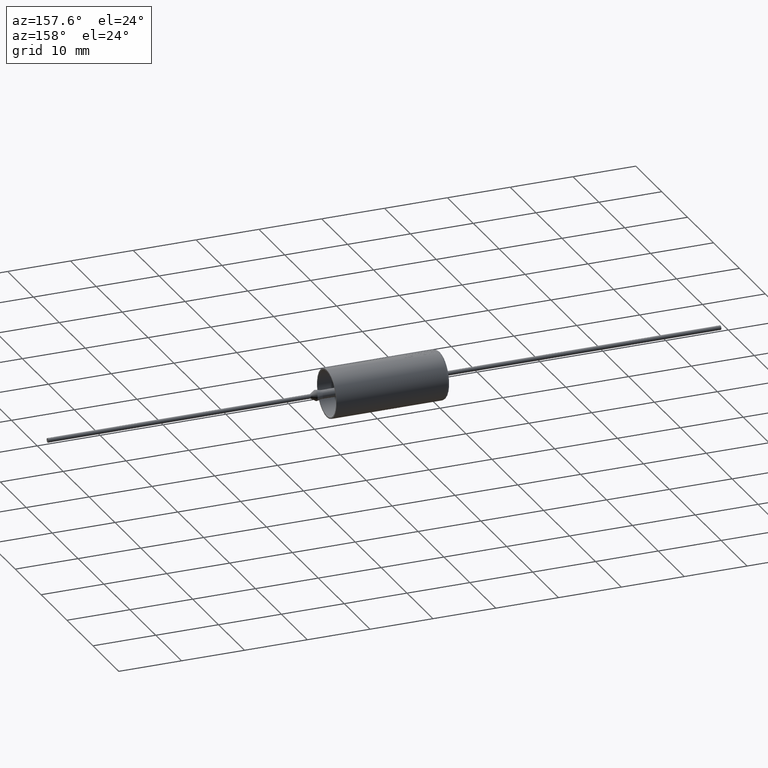
[diagram: clean part render]
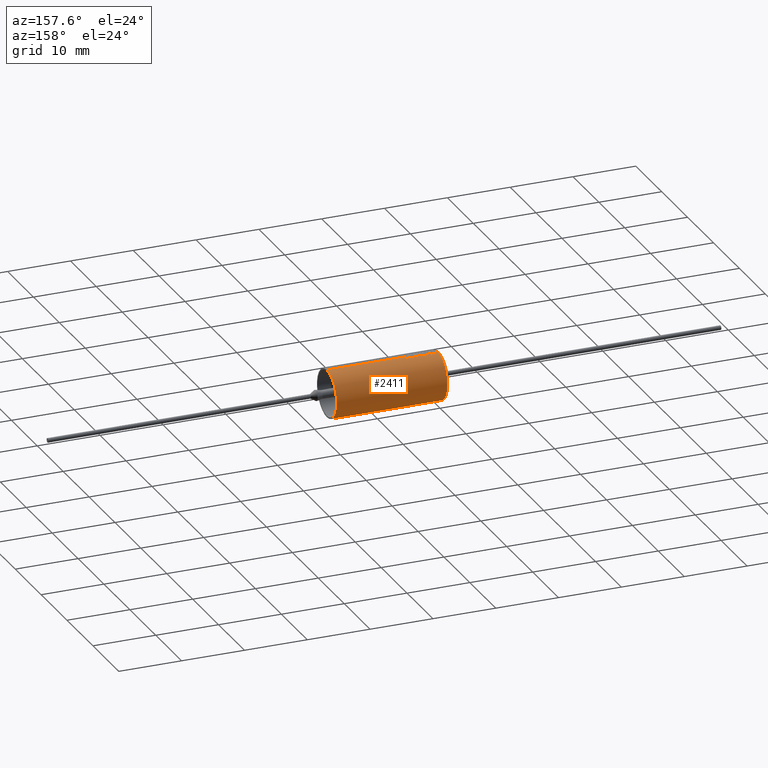
[diagram: same view with one face highlighted and labeled with its STEP entity id]
A machine part, auxiliary view. The second image highlights one B-rep face of the part: STEP entity #2411.
In plain terms, the highlighted cylindrical surface (edge-blend (fillet) strip) has radius 3.795 mm, axis along (-1, -0, -0).
Its self-contained STEP definition (entity closure, byte-faithful):
#1 = VERTEX_POINT ( 'NONE', #4291 ) ;
#16 = CARTESIAN_POINT ( 'NONE',  ( 18.03999999999999900, 0.0000000000000000000, 0.0000000000000000000 ) ) ;
#36 = CARTESIAN_POINT ( 'NONE',  ( 5.800082189269351900, 0.5053498802018263600, 3.761202799448602400 ) ) ;
#63 = CARTESIAN_POINT ( 'NONE',  ( 3.366834385562267800, -2.682284987102373900E-008, 3.794995729906363500 ) ) ;
#83 = AXIS2_PLACEMENT_3D ( 'NONE', #3493, #1466, #2101 ) ;
#125 = DIRECTION ( 'NONE',  ( 0.0000000000000000000, 0.0000000000000000000, -1.000000000000000000 ) ) ;
#137 = CARTESIAN_POINT ( 'NONE',  ( 2.597866026765034400, -1.171822058468720600E-011, 3.794999978594005600 ) ) ;
#142 = VERTEX_POINT ( 'NONE', #63 ) ;
#143 = CARTESIAN_POINT ( 'NONE',  ( 1.391821770826588500, 0.3633315228069750600, 3.780284184772060700 ) ) ;
#146 = CARTESIAN_POINT ( 'NONE',  ( 2.219784444914823400, 0.1899129147920048100, 3.790760400689601200 ) ) ;
#156 = CARTESIAN_POINT ( 'NONE',  ( 3.299798948356261100, 0.5053498802018263600, 3.761202799448602400 ) ) ;
#161 = LINE ( 'NONE', #568, #1588 ) ;
#167 = DIRECTION ( 'NONE',  ( -1.000000000000000000, 0.0000000000000000000, 0.0000000000000000000 ) ) ;
#185 = CARTESIAN_POINT ( 'NONE',  ( 3.963200266225579000, 0.1689406828950545400, 3.794954797122759100 ) ) ;
#197 = ORIENTED_EDGE ( 'NONE', *, *, #1290, .F. ) ;
#208 = CARTESIAN_POINT ( 'NONE',  ( 4.060353136190324000, 0.5053498802018263600, 3.761202799448602400 ) ) ;
#214 = DIRECTION ( 'NONE',  ( -1.000000000000000000, -0.0000000000000000000, -0.0000000000000000000 ) ) ;
#215 = DIRECTION ( 'NONE',  ( -1.000000000000000000, -0.0000000000000000000, -0.0000000000000000000 ) ) ;
#218 = EDGE_CURVE ( 'NONE', #999, #2417, #958, .T. ) ;
#221 = DIRECTION ( 'NONE',  ( -1.000000000000000000, -0.0000000000000000000, -0.0000000000000000000 ) ) ;
#222 = EDGE_CURVE ( 'NONE', #2417, #1282, #1381, .T. ) ;
#232 = CARTESIAN_POINT ( 'NONE',  ( 2.256157661503412900, 0.3146119058083372000, 3.781936587083877500 ) ) ;
#233 = CARTESIAN_POINT ( 'NONE',  ( 1.927975110382360100, 0.1689406841962953800, 3.794954796596459600 ) ) ;
#264 = ORIENTED_EDGE ( 'NONE', *, *, #2259, .F. ) ;
#270 = B_SPLINE_CURVE_WITH_KNOTS ( 'NONE', 3,
 ( #1926, #1909, #3237, #2237 ),
 .UNSPECIFIED., .F., .F.,
 ( 4, 4 ),
 ( 0.2962093869110368200, 1.000000000000000000 ),
 .UNSPECIFIED. ) ;
#272 = CARTESIAN_POINT ( 'NONE',  ( 2.751779557736932200, 0.4419588121890854500, 3.769719933550172500 ) ) ;
#283 = CARTESIAN_POINT ( 'NONE',  ( 1.879360679399979100, -1.138095618239165700E-009, 3.794977566920147500 ) ) ;
#356 = CARTESIAN_POINT ( 'NONE',  ( 2.724806113632353400, -1.505173109949874200E-008, 3.794991185906378300 ) ) ;
#392 = CARTESIAN_POINT ( 'NONE',  ( 18.03999999999999900, 0.0000000000000000000, 3.795000000000000400 ) ) ;
#404 = DIRECTION ( 'NONE',  ( -1.000000000000000000, -0.0000000000000000000, -0.0000000000000000000 ) ) ;
#422 = VERTEX_POINT ( 'NONE', #1166 ) ;
#436 = CARTESIAN_POINT ( 'NONE',  ( 5.378398342063343700, 1.434771836136480700E-008, 3.794991221335218600 ) ) ;
#440 = CARTESIAN_POINT ( 'NONE',  ( 2.769945736530865100, 0.5053498802018263600, 3.761202799448602400 ) ) ;
#459 = EDGE_LOOP ( 'NONE', ( #1208, #3943, #3897, #2935, #264, #861, #1991, #1036, #2036, #4282, #3415, #2678, #3061, #1255, #1226, #2260, #2868, #2250, #2252, #2627, #570, #2016, #2588, #1257, #2873, #4046, #1866, #197, #4322, #2533, #2902, #3904, #931, #2354, #3954 ) ) ;
#460 = VECTOR ( 'NONE', #3243, 1000.000000000000000 ) ;
#462 = CARTESIAN_POINT ( 'NONE',  ( 5.408310496457287900, 0.1040682591005269700, 3.794986864032334800 ) ) ;
#489 = CARTESIAN_POINT ( 'NONE',  ( 5.744139532500206300, 0.3118408385990580300, 3.782166084584578100 ) ) ;
#527 = CARTESIAN_POINT ( 'NONE',  ( 2.634275670684877600, 0.1274475243034808600, 3.792859360502168100 ) ) ;
#568 = CARTESIAN_POINT ( 'NONE',  ( 18.03999999999999900, 0.0000000000000000000, 3.795000000000000400 ) ) ;
#570 = ORIENTED_EDGE ( 'NONE', *, *, #1778, .F. ) ;
#571 = LINE ( 'NONE', #527, #460 ) ;
#574 = VERTEX_POINT ( 'NONE', #1936 ) ;
#582 = CARTESIAN_POINT ( 'NONE',  ( 18.03999999999999900, 4.647534602764205900E-016, -3.795000000000000400 ) ) ;
#615 = EDGE_CURVE ( 'NONE', #3627, #3423, #926, .T. ) ;
#708 = CARTESIAN_POINT ( 'NONE',  ( 2.025213259738551500, 0.5053498802018263600, 3.761202799448602400 ) ) ;
#729 = DIRECTION ( 'NONE',  ( -1.000000000000000000, -0.0000000000000000000, -0.0000000000000000000 ) ) ;
#743 = B_SPLINE_CURVE_WITH_KNOTS ( 'NONE', 3,
 ( #2964, #3935, #955, #3314 ),
 .UNSPECIFIED., .F., .F.,
 ( 4, 4 ),
 ( 0.0000000000000000000, 0.7037900856413064100 ),
 .UNSPECIFIED. ) ;
#785 = DIRECTION ( 'NONE',  ( -1.000000000000000000, 0.0000000000000000000, 0.0000000000000000000 ) ) ;
#796 = B_SPLINE_CURVE_WITH_KNOTS ( 'NONE', 3,
 ( #862, #2239, #1546, #1929 ),
 .UNSPECIFIED., .F., .F.,
 ( 4, 4 ),
 ( 0.3159881260439704700, 1.000000000000000000 ),
 .UNSPECIFIED. ) ;
#810 = VERTEX_POINT ( 'NONE', #3271 ) ;
#814 = CARTESIAN_POINT ( 'NONE',  ( 2.724806113632353400, -1.505173109949874200E-008, 3.794991185906378300 ) ) ;
#849 = VERTEX_POINT ( 'NONE', #3254 ) ;
#861 = ORIENTED_EDGE ( 'NONE', *, *, #222, .F. ) ;
#862 = CARTESIAN_POINT ( 'NONE',  ( 2.597866026765034400, -1.171822058468720600E-011, 3.794999978594005600 ) ) ;
#866 = VERTEX_POINT ( 'NONE', #582 ) ;
#876 = CARTESIAN_POINT ( 'NONE',  ( 0.9423983057587279600, 0.5053498802018263600, 3.761202799448602400 ) ) ;
#896 = CARTESIAN_POINT ( 'NONE',  ( 0.7967368280151977400, -1.135541335622584600E-009, 3.794977567310410900 ) ) ;
#926 = B_SPLINE_CURVE_WITH_KNOTS ( 'NONE', 3,
 ( #2602, #1592, #233, #283 ),
 .UNSPECIFIED., .F., .F.,
 ( 4, 4 ),
 ( 0.0000000000000000000, 0.5027951905150793700 ),
 .UNSPECIFIED. ) ;
#930 = EDGE_CURVE ( 'NONE', #3235, #810, #796, .T. ) ;
#931 = ORIENTED_EDGE ( 'NONE', *, *, #3879, .F. ) ;
#955 = CARTESIAN_POINT ( 'NONE',  ( 3.450628636054022800, 0.1689506893709681600, 3.794983618063915800 ) ) ;
#958 = B_SPLINE_CURVE_WITH_KNOTS ( 'NONE', 3,
 ( #3085, #3764, #3793, #2104 ),
 .UNSPECIFIED., .F., .F.,
 ( 4, 4 ),
 ( 0.0000000000000000000, 1.000000000000000000 ),
 .UNSPECIFIED. ) ;
#983 = B_SPLINE_CURVE_WITH_KNOTS ( 'NONE', 3,
 ( #1259, #2325, #272, #1292 ),
 .UNSPECIFIED., .F., .F.,
 ( 4, 4 ),
 ( 0.0000000000000000000, 1.000000000000000000 ),
 .UNSPECIFIED. ) ;
#984 = CARTESIAN_POINT ( 'NONE',  ( 1.408527762148850800, 0.01537912483353299900, 3.794999843485876900 ) ) ;
#999 = VERTEX_POINT ( 'NONE', #1912 ) ;
#1005 = VECTOR ( 'NONE', #3514, 1000.000000000000000 ) ;
#1028 = CARTESIAN_POINT ( 'NONE',  ( 1.866378213314611000, 0.5053498802018263600, 3.761202799448602400 ) ) ;
#1033 = EDGE_CURVE ( 'NONE', #3970, #1144, #983, .T. ) ;
#1036 = ORIENTED_EDGE ( 'NONE', *, *, #2829, .F. ) ;
#1063 = CARTESIAN_POINT ( 'NONE',  ( 0.9423983057587279600, 0.5053498802018263600, 3.761202799448602400 ) ) ;
#1066 = CARTESIAN_POINT ( 'NONE',  ( 4.036011471948663500, -1.137249635612766000E-009, 3.794977567049227000 ) ) ;
#1069 = CARTESIAN_POINT ( 'NONE',  ( 5.800082189269351900, 0.5053498802018263600, 3.761202799448602400 ) ) ;
#1132 = CARTESIAN_POINT ( 'NONE',  ( 2.256157661503412900, 0.3146119058083372000, 3.781936587083877500 ) ) ;
#1144 = VERTEX_POINT ( 'NONE', #3012 ) ;
#1156 = CARTESIAN_POINT ( 'NONE',  ( 4.060353136190325800, 0.5053498802018263600, 3.761202799448602400 ) ) ;
#1166 = CARTESIAN_POINT ( 'NONE',  ( 1.414902502526452800, 1.414942446782219700E-009, 3.794999801662097800 ) ) ;
#1208 = ORIENTED_EDGE ( 'NONE', *, *, #3698, .F. ) ;
#1212 = CARTESIAN_POINT ( 'NONE',  ( 0.7967368280151977400, -1.135541335622584600E-009, 3.794977567310410900 ) ) ;
#1226 = ORIENTED_EDGE ( 'NONE', *, *, #1033, .F. ) ;
#1234 = CARTESIAN_POINT ( 'NONE',  ( 1.879360679399979100, -1.138095618239165700E-009, 3.794977566920147500 ) ) ;
#1236 = CARTESIAN_POINT ( 'NONE',  ( 1.249014688880566400, 0.2202327452579419300, 3.791313209300854600 ) ) ;
#1241 = CARTESIAN_POINT ( 'NONE',  ( 5.652138932945121900, 0.3118481176861016600, 3.782165484421455400 ) ) ;
#1255 = ORIENTED_EDGE ( 'NONE', *, *, #2137, .F. ) ;
#1257 = ORIENTED_EDGE ( 'NONE', *, *, #1953, .F. ) ;
#1259 = CARTESIAN_POINT ( 'NONE',  ( 2.715447210238454400, 0.3146119058083372000, 3.781936587083877500 ) ) ;
#1282 = VERTEX_POINT ( 'NONE', #1063 ) ;
#1290 = EDGE_CURVE ( 'NONE', #3656, #3251, #2884, .T. ) ;
#1292 = CARTESIAN_POINT ( 'NONE',  ( 2.769945736530865100, 0.5053498802018263600, 3.761202799448602400 ) ) ;
#1360 = VERTEX_POINT ( 'NONE', #436 ) ;
#1380 = CARTESIAN_POINT ( 'NONE',  ( 3.299798948356261100, 0.5053498802018263600, 3.761202799448602400 ) ) ;
#1381 = LINE ( 'NONE', #2791, #3286 ) ;
#1398 = CARTESIAN_POINT ( 'NONE',  ( 18.03999999999999900, 4.647534602764205900E-016, -3.795000000000000400 ) ) ;
#1432 = B_SPLINE_CURVE_WITH_KNOTS ( 'NONE', 3,
 ( #1900, #143, #1236, #2256 ),
 .UNSPECIFIED., .F., .F.,
 ( 4, 4 ),
 ( 0.0000000000000000000, 1.000000000000000000 ),
 .UNSPECIFIED. ) ;
#1466 = DIRECTION ( 'NONE',  ( 1.000000000000000000, 0.0000000000000000000, 0.0000000000000000000 ) ) ;
#1473 = LINE ( 'NONE', #3486, #1005 ) ;
#1478 = DIRECTION ( 'NONE',  ( 1.000000000000000000, 0.0000000000000000000, 0.0000000000000000000 ) ) ;
#1492 = CARTESIAN_POINT ( 'NONE',  ( 1.534629928863762800, 0.5053498802018263600, 3.761202799448602400 ) ) ;
#1497 = CARTESIAN_POINT ( 'NONE',  ( 2.821929176863330100, 0.3378924202604800500, 3.783702146554444900 ) ) ;
#1532 = CARTESIAN_POINT ( 'NONE',  ( 1.395778227211427000, 0.04613636323455464600, 3.794719546420721700 ) ) ;
#1542 = CARTESIAN_POINT ( 'NONE',  ( 3.914628471433054800, -1.136385305933532200E-009, 3.794977567181413700 ) ) ;
#1546 = CARTESIAN_POINT ( 'NONE',  ( 2.622139120495066100, 0.08498098655784457100, 3.794286319581585700 ) ) ;
#1563 = LINE ( 'NONE', #2060, #2516 ) ;
#1588 = VECTOR ( 'NONE', #221, 1000.000000000000000 ) ;
#1592 = CARTESIAN_POINT ( 'NONE',  ( 1.976589485148590600, 0.3378811988087953000, 3.783703654252797800 ) ) ;
#1596 = CARTESIAN_POINT ( 'NONE',  ( 5.560138333390041200, 0.3118553967714126100, 3.782164884237318800 ) ) ;
#1597 = EDGE_CURVE ( 'NONE', #2206, #1, #2170, .T. ) ;
#1626 = VECTOR ( 'NONE', #2094, 1000.000000000000000 ) ;
#1635 = VECTOR ( 'NONE', #1831, 1000.000000000000000 ) ;
#1653 = CARTESIAN_POINT ( 'NONE',  ( 5.744139532500206300, 0.3118408385990580300, 3.782166084584578100 ) ) ;
#1735 = AXIS2_PLACEMENT_3D ( 'NONE', #2150, #1478, #125 ) ;
#1736 = CIRCLE ( 'NONE', #1735, 3.795000000000000400 ) ;
#1778 = EDGE_CURVE ( 'NONE', #1, #2977, #2712, .T. ) ;
#1784 = CARTESIAN_POINT ( 'NONE',  ( 5.468137733834959500, 0.3118626758549908300, 3.782164284032168800 ) ) ;
#1795 = EDGE_CURVE ( 'NONE', #3640, #3970, #2424, .T. ) ;
#1796 = CARTESIAN_POINT ( 'NONE',  ( 5.762787088406476200, 0.3765089383695908200, 3.776834178472563900 ) ) ;
#1831 = DIRECTION ( 'NONE',  ( -1.000000000000000000, 0.0000000000000000000, 0.0000000000000000000 ) ) ;
#1849 = LINE ( 'NONE', #3249, #3484 ) ;
#1862 = CARTESIAN_POINT ( 'NONE',  ( 4.133198155351260900, 0.3378811975103769300, 3.783703654427251500 ) ) ;
#1866 = ORIENTED_EDGE ( 'NONE', *, *, #2707, .F. ) ;
#1880 = CARTESIAN_POINT ( 'NONE',  ( 0.8452875616246817700, 0.1689406822525778300, 3.794954797382615700 ) ) ;
#1892 = CARTESIAN_POINT ( 'NONE',  ( 4.181800865273505300, 0.5053498802018263600, 3.761202799448602400 ) ) ;
#1900 = CARTESIAN_POINT ( 'NONE',  ( 1.534629928863762800, 0.5053498802018263600, 3.761202799448602400 ) ) ;
#1904 = CARTESIAN_POINT ( 'NONE',  ( 4.011772004844377000, 0.3378811961807015600, 3.783703654605904600 ) ) ;
#1909 = CARTESIAN_POINT ( 'NONE',  ( 3.281609421731535000, 0.1689505734397769300, 3.794983775710938800 ) ) ;
#1911 = EDGE_CURVE ( 'NONE', #3605, #2206, #270, .T. ) ;
#1912 = CARTESIAN_POINT ( 'NONE',  ( 1.106206530843391900, 0.07696772136554742800, 3.794219415092885000 ) ) ;
#1926 = CARTESIAN_POINT ( 'NONE',  ( 3.272514718019210000, -7.732563083636128700E-010, 3.794995771619761500 ) ) ;
#1929 = CARTESIAN_POINT ( 'NONE',  ( 2.634275670684877600, 0.1274475243034808600, 3.792859360502168100 ) ) ;
#1936 = CARTESIAN_POINT ( 'NONE',  ( 4.930153294796409300, 0.5053498802018263600, 3.761202799448602400 ) ) ;
#1953 = EDGE_CURVE ( 'NONE', #142, #3605, #1849, .T. ) ;
#1991 = ORIENTED_EDGE ( 'NONE', *, *, #218, .F. ) ;
#2016 = ORIENTED_EDGE ( 'NONE', *, *, #1597, .F. ) ;
#2036 = ORIENTED_EDGE ( 'NONE', *, *, #4149, .F. ) ;
#2052 = B_SPLINE_CURVE_WITH_KNOTS ( 'NONE', 3,
 ( #1892, #1862, #4233, #3436 ),
 .UNSPECIFIED., .F., .F.,
 ( 4, 4 ),
 ( 0.0000000000000000000, 0.5027951905243075400 ),
 .UNSPECIFIED. ) ;
#2056 = CARTESIAN_POINT ( 'NONE',  ( 2.256157661503412900, 0.3146119058083372000, 3.781936587083877500 ) ) ;
#2060 = CARTESIAN_POINT ( 'NONE',  ( 18.03999999999999900, 0.0000000000000000000, 3.795000000000000400 ) ) ;
#2075 = CARTESIAN_POINT ( 'NONE',  ( 4.060353136190324000, 0.5053498802018263600, 3.761202799448602400 ) ) ;
#2089 = VERTEX_POINT ( 'NONE', #3657 ) ;
#2094 = DIRECTION ( 'NONE',  ( -1.000000000000000000, 0.0000000000000000000, 0.0000000000000000000 ) ) ;
#2101 = DIRECTION ( 'NONE',  ( 0.0000000000000000000, 0.0000000000000000000, -1.000000000000000000 ) ) ;
#2104 = CARTESIAN_POINT ( 'NONE',  ( 1.229432051315697300, 0.5053498802018263600, 3.761202799448602400 ) ) ;
#2137 = EDGE_CURVE ( 'NONE', #1144, #3627, #3478, .T. ) ;
#2150 = CARTESIAN_POINT ( 'NONE',  ( 0.4000000000000010200, 0.0000000000000000000, 0.0000000000000000000 ) ) ;
#2169 = VECTOR ( 'NONE', #2220, 1000.000000000000000 ) ;
#2170 = LINE ( 'NONE', #1380, #3060 ) ;
#2206 = VERTEX_POINT ( 'NONE', #156 ) ;
#2220 = DIRECTION ( 'NONE',  ( -1.000000000000000000, -0.0000000000000000000, -0.0000000000000000000 ) ) ;
#2237 = CARTESIAN_POINT ( 'NONE',  ( 3.299798948356261100, 0.5053498802018263600, 3.761202799448602400 ) ) ;
#2239 = CARTESIAN_POINT ( 'NONE',  ( 2.610002574404890500, 0.04249049586593525700, 3.794999923943988700 ) ) ;
#2250 = ORIENTED_EDGE ( 'NONE', *, *, #4379, .F. ) ;
#2252 = ORIENTED_EDGE ( 'NONE', *, *, #930, .F. ) ;
#2256 = CARTESIAN_POINT ( 'NONE',  ( 1.106206530843391900, 0.07696772136554742800, 3.794219415092885000 ) ) ;
#2259 = EDGE_CURVE ( 'NONE', #1282, #2734, #3167, .T. ) ;
#2260 = ORIENTED_EDGE ( 'NONE', *, *, #1795, .F. ) ;
#2291 = VERTEX_POINT ( 'NONE', #2541 ) ;
#2294 = EDGE_CURVE ( 'NONE', #4051, #3597, #3629, .T. ) ;
#2300 = LINE ( 'NONE', #3978, #3773 ) ;
#2325 = CARTESIAN_POINT ( 'NONE',  ( 2.733613389032389000, 0.3783524197329926100, 3.776634138430580400 ) ) ;
#2332 = LINE ( 'NONE', #1398, #2689 ) ;
#2334 = EDGE_CURVE ( 'NONE', #849, #3656, #2052, .T. ) ;
#2354 = ORIENTED_EDGE ( 'NONE', *, *, #4178, .F. ) ;
#2357 = EDGE_CURVE ( 'NONE', #2977, #3235, #1563, .T. ) ;
#2381 = CARTESIAN_POINT ( 'NONE',  ( 3.618218030391421500, 0.5053498802018263600, 3.761202799448601900 ) ) ;
#2411 = ADVANCED_FACE ( 'NONE', ( #4156 ), #3421, .T. ) ;
#2417 = VERTEX_POINT ( 'NONE', #2426 ) ;
#2424 = LINE ( 'NONE', #1132, #2835 ) ;
#2426 = CARTESIAN_POINT ( 'NONE',  ( 1.229432051315697300, 0.5053498802018263600, 3.761202799448602400 ) ) ;
#2458 = CARTESIAN_POINT ( 'NONE',  ( 5.468137733834959500, 0.3118626758549908300, 3.782164284032168800 ) ) ;
#2461 = CARTESIAN_POINT ( 'NONE',  ( 2.201597832031918500, 0.1274475243034808600, 3.792859360502168100 ) ) ;
#2516 = VECTOR ( 'NONE', #3118, 1000.000000000000000 ) ;
#2524 = CARTESIAN_POINT ( 'NONE',  ( 2.870495211022033600, 0.5053498802018263600, 3.761202799448602400 ) ) ;
#2532 = EDGE_CURVE ( 'NONE', #574, #849, #4195, .T. ) ;
#2533 = ORIENTED_EDGE ( 'NONE', *, *, #2532, .F. ) ;
#2534 = CARTESIAN_POINT ( 'NONE',  ( 18.03999999999999900, 0.0000000000000000000, 3.795000000000000400 ) ) ;
#2541 = CARTESIAN_POINT ( 'NONE',  ( 0.4000000000000010200, 4.647534602764205900E-016, -3.795000000000000400 ) ) ;
#2552 = CARTESIAN_POINT ( 'NONE',  ( 0.8938382390813992600, 0.3378811948831034200, 3.783703654780248300 ) ) ;
#2561 = CARTESIAN_POINT ( 'NONE',  ( 2.237971048620508400, 0.2523264047493813400, 3.787117996063422300 ) ) ;
#2588 = ORIENTED_EDGE ( 'NONE', *, *, #1911, .F. ) ;
#2602 = CARTESIAN_POINT ( 'NONE',  ( 2.025213259738551500, 0.5053498802018263600, 3.761202799448602400 ) ) ;
#2626 = VECTOR ( 'NONE', #2770, 1000.000000000000000 ) ;
#2627 = ORIENTED_EDGE ( 'NONE', *, *, #2357, .F. ) ;
#2646 = EDGE_CURVE ( 'NONE', #2089, #3640, #3408, .T. ) ;
#2664 = CARTESIAN_POINT ( 'NONE',  ( 1.395778227211427000, 0.04613636323455464600, 3.794719546420721700 ) ) ;
#2678 = ORIENTED_EDGE ( 'NONE', *, *, #3274, .F. ) ;
#2686 = CARTESIAN_POINT ( 'NONE',  ( 1.395778227211427000, 0.04613636323455464600, 3.794719546420721700 ) ) ;
#2689 = VECTOR ( 'NONE', #404, 1000.000000000000000 ) ;
#2696 = CARTESIAN_POINT ( 'NONE',  ( 2.715447210238454400, 0.3146119058083372000, 3.781936587083877500 ) ) ;
#2707 = EDGE_CURVE ( 'NONE', #3251, #3553, #4192, .T. ) ;
#2712 = B_SPLINE_CURVE_WITH_KNOTS ( 'NONE', 3,
 ( #2524, #1497, #3817, #814 ),
 .UNSPECIFIED., .F., .F.,
 ( 4, 4 ),
 ( 0.0000000000000000000, 0.6209295391595800500 ),
 .UNSPECIFIED. ) ;
#2734 = VERTEX_POINT ( 'NONE', #896 ) ;
#2740 = EDGE_CURVE ( 'NONE', #2734, #3380, #2300, .T. ) ;
#2770 = DIRECTION ( 'NONE',  ( -1.000000000000000000, -0.0000000000000000000, -0.0000000000000000000 ) ) ;
#2782 = CARTESIAN_POINT ( 'NONE',  ( 5.438223147879689600, 0.2081379886112148500, 3.790717021588449600 ) ) ;
#2791 = CARTESIAN_POINT ( 'NONE',  ( 1.229432051315697300, 0.5053498802018263600, 3.761202799448602400 ) ) ;
#2798 = EDGE_CURVE ( 'NONE', #3203, #3004, #3987, .T. ) ;
#2829 = EDGE_CURVE ( 'NONE', #4259, #999, #1432, .T. ) ;
#2835 = VECTOR ( 'NONE', #3492, 1000.000000000000000 ) ;
#2868 = ORIENTED_EDGE ( 'NONE', *, *, #2646, .F. ) ;
#2873 = ORIENTED_EDGE ( 'NONE', *, *, #3924, .F. ) ;
#2884 = LINE ( 'NONE', #392, #2626 ) ;
#2902 = ORIENTED_EDGE ( 'NONE', *, *, #4141, .F. ) ;
#2935 = ORIENTED_EDGE ( 'NONE', *, *, #2740, .F. ) ;
#2964 = CARTESIAN_POINT ( 'NONE',  ( 3.618218030391421500, 0.5053498802018263600, 3.761202799448601900 ) ) ;
#2977 = VERTEX_POINT ( 'NONE', #356 ) ;
#2989 = CARTESIAN_POINT ( 'NONE',  ( 1.414902502526452800, 1.414942446782219700E-009, 3.794999801662097800 ) ) ;
#3004 = VERTEX_POINT ( 'NONE', #36 ) ;
#3012 = CARTESIAN_POINT ( 'NONE',  ( 2.769945736530865100, 0.5053498802018263600, 3.761202799448602400 ) ) ;
#3016 = EDGE_CURVE ( 'NONE', #866, #2291, #2332, .T. ) ;
#3060 = VECTOR ( 'NONE', #3373, 1000.000000000000000 ) ;
#3061 = ORIENTED_EDGE ( 'NONE', *, *, #615, .F. ) ;
#3078 = B_SPLINE_CURVE_WITH_KNOTS ( 'NONE', 3,
 ( #4329, #1596, #1241, #4297 ),
 .UNSPECIFIED., .F., .F.,
 ( 4, 4 ),
 ( 0.0000000000000000000, 1.000000000000000000 ),
 .UNSPECIFIED. ) ;
#3085 = CARTESIAN_POINT ( 'NONE',  ( 1.106206530843391900, 0.07696772136554742800, 3.794219415092885000 ) ) ;
#3118 = DIRECTION ( 'NONE',  ( -1.000000000000000000, -0.0000000000000000000, -0.0000000000000000000 ) ) ;
#3120 = VERTEX_POINT ( 'NONE', #4234 ) ;
#3154 = EDGE_CURVE ( 'NONE', #3553, #3663, #3973, .T. ) ;
#3167 = B_SPLINE_CURVE_WITH_KNOTS ( 'NONE', 3,
 ( #876, #2552, #1880, #1212 ),
 .UNSPECIFIED., .F., .F.,
 ( 4, 4 ),
 ( 0.0000000000000000000, 0.5027951905429805000 ),
 .UNSPECIFIED. ) ;
#3171 = CARTESIAN_POINT ( 'NONE',  ( 5.378398342063343700, 1.434771836136480700E-008, 3.794991221335218600 ) ) ;
#3173 = LINE ( 'NONE', #2534, #2169 ) ;
#3203 = VERTEX_POINT ( 'NONE', #489 ) ;
#3235 = VERTEX_POINT ( 'NONE', #137 ) ;
#3237 = CARTESIAN_POINT ( 'NONE',  ( 3.290703823846746100, 0.3378957410698152400, 3.783701700375206900 ) ) ;
#3238 = CARTESIAN_POINT ( 'NONE',  ( 1.866378213314611000, 0.5053498802018263600, 3.761202799448602400 ) ) ;
#3243 = DIRECTION ( 'NONE',  ( -1.000000000000000000, 0.0000000000000000000, 0.0000000000000000000 ) ) ;
#3249 = CARTESIAN_POINT ( 'NONE',  ( 18.03999999999999900, 0.0000000000000000000, 3.795000000000000400 ) ) ;
#3251 = VERTEX_POINT ( 'NONE', #1542 ) ;
#3254 = CARTESIAN_POINT ( 'NONE',  ( 4.181800865273505300, 0.5053498802018263600, 3.761202799448602400 ) ) ;
#3271 = CARTESIAN_POINT ( 'NONE',  ( 2.634275670684877600, 0.1274475243034808600, 3.792859360502168100 ) ) ;
#3274 = EDGE_CURVE ( 'NONE', #3423, #422, #161, .T. ) ;
#3286 = VECTOR ( 'NONE', #3449, 1000.000000000000000 ) ;
#3308 = EDGE_CURVE ( 'NONE', #3120, #1360, #3173, .T. ) ;
#3314 = CARTESIAN_POINT ( 'NONE',  ( 3.366834385562267800, -2.682284987102373900E-008, 3.794995729906363500 ) ) ;
#3373 = DIRECTION ( 'NONE',  ( -1.000000000000000000, 0.0000000000000000000, 0.0000000000000000000 ) ) ;
#3380 = VERTEX_POINT ( 'NONE', #4248 ) ;
#3398 = AXIS2_PLACEMENT_3D ( 'NONE', #16, #729, #3794 ) ;
#3408 = B_SPLINE_CURVE_WITH_KNOTS ( 'NONE', 3,
 ( #2461, #146, #2561, #232 ),
 .UNSPECIFIED., .F., .F.,
 ( 4, 4 ),
 ( 0.0000000000000000000, 1.000000000000000000 ),
 .UNSPECIFIED. ) ;
#3415 = ORIENTED_EDGE ( 'NONE', *, *, #4067, .F. ) ;
#3421 = CYLINDRICAL_SURFACE ( 'NONE', #3398, 3.795000000000000400 ) ;
#3423 = VERTEX_POINT ( 'NONE', #1234 ) ;
#3436 = CARTESIAN_POINT ( 'NONE',  ( 4.036011471948663500, -1.137249635612766000E-009, 3.794977567049227000 ) ) ;
#3449 = DIRECTION ( 'NONE',  ( -1.000000000000000000, 0.0000000000000000000, 0.0000000000000000000 ) ) ;
#3478 = LINE ( 'NONE', #440, #4110 ) ;
#3484 = VECTOR ( 'NONE', #215, 1000.000000000000000 ) ;
#3486 = CARTESIAN_POINT ( 'NONE',  ( 1.866378213314611000, 0.5053498802018263600, 3.761202799448602400 ) ) ;
#3487 = CARTESIAN_POINT ( 'NONE',  ( 4.930153294796409300, 0.5053498802018263600, 3.761202799448602400 ) ) ;
#3492 = DIRECTION ( 'NONE',  ( 1.000000000000000000, 0.0000000000000000000, 0.0000000000000000000 ) ) ;
#3493 = CARTESIAN_POINT ( 'NONE',  ( 18.03999999999999900, 0.0000000000000000000, 0.0000000000000000000 ) ) ;
#3514 = DIRECTION ( 'NONE',  ( -1.000000000000000000, 0.0000000000000000000, 0.0000000000000000000 ) ) ;
#3546 = B_SPLINE_CURVE_WITH_KNOTS ( 'NONE', 3,
 ( #2989, #984, #3724, #2664 ),
 .UNSPECIFIED., .F., .F.,
 ( 4, 4 ),
 ( 0.9157093637414722700, 1.000000000000000000 ),
 .UNSPECIFIED. ) ;
#3553 = VERTEX_POINT ( 'NONE', #2075 ) ;
#3555 = CARTESIAN_POINT ( 'NONE',  ( 1.709511044860488900, 0.3531444258613842300, 3.781652908687137300 ) ) ;
#3597 = VERTEX_POINT ( 'NONE', #1028 ) ;
#3605 = VERTEX_POINT ( 'NONE', #4108 ) ;
#3627 = VERTEX_POINT ( 'NONE', #708 ) ;
#3629 = B_SPLINE_CURVE_WITH_KNOTS ( 'NONE', 3,
 ( #1532, #4217, #3555, #3238 ),
 .UNSPECIFIED., .F., .F.,
 ( 4, 4 ),
 ( 0.0000000000000000000, 1.000000000000000000 ),
 .UNSPECIFIED. ) ;
#3640 = VERTEX_POINT ( 'NONE', #2056 ) ;
#3656 = VERTEX_POINT ( 'NONE', #1066 ) ;
#3657 = CARTESIAN_POINT ( 'NONE',  ( 2.201597832031918500, 0.1274475243034808600, 3.792859360502168100 ) ) ;
#3663 = VERTEX_POINT ( 'NONE', #2381 ) ;
#3674 = VECTOR ( 'NONE', #167, 1000.000000000000000 ) ;
#3698 = EDGE_CURVE ( 'NONE', #866, #3120, #4000, .T. ) ;
#3724 = CARTESIAN_POINT ( 'NONE',  ( 1.402153003576778000, 0.03075828719767252300, 3.794906513729690500 ) ) ;
#3764 = CARTESIAN_POINT ( 'NONE',  ( 1.147281892837122700, 0.2202330428862729300, 3.791313203263308100 ) ) ;
#3773 = VECTOR ( 'NONE', #214, 1000.000000000000000 ) ;
#3793 = CARTESIAN_POINT ( 'NONE',  ( 1.188356689321963500, 0.3633312277685522600, 3.780284224413005000 ) ) ;
#3794 = DIRECTION ( 'NONE',  ( 0.0000000000000000000, 0.0000000000000000000, 1.000000000000000000 ) ) ;
#3817 = CARTESIAN_POINT ( 'NONE',  ( 2.773368292993188900, 0.1689482739361833900, 3.794974860849605700 ) ) ;
#3879 = EDGE_CURVE ( 'NONE', #4222, #3203, #3078, .T. ) ;
#3894 = CARTESIAN_POINT ( 'NONE',  ( 3.914628471433054800, -1.136385305933532200E-009, 3.794977567181413700 ) ) ;
#3897 = ORIENTED_EDGE ( 'NONE', *, *, #4205, .T. ) ;
#3904 = ORIENTED_EDGE ( 'NONE', *, *, #2798, .F. ) ;
#3924 = EDGE_CURVE ( 'NONE', #3663, #142, #743, .T. ) ;
#3935 = CARTESIAN_POINT ( 'NONE',  ( 3.534420627542548000, 0.3378970443470654100, 3.783701525268721200 ) ) ;
#3936 = CARTESIAN_POINT ( 'NONE',  ( 5.800082189269351900, 0.5053498802018263600, 3.761202799448602400 ) ) ;
#3943 = ORIENTED_EDGE ( 'NONE', *, *, #3016, .T. ) ;
#3951 = B_SPLINE_CURVE_WITH_KNOTS ( 'NONE', 3,
 ( #3171, #462, #2782, #1784 ),
 .UNSPECIFIED., .F., .F.,
 ( 4, 4 ),
 ( 0.6161800363412263100, 1.000000000000000000 ),
 .UNSPECIFIED. ) ;
#3954 = ORIENTED_EDGE ( 'NONE', *, *, #3308, .F. ) ;
#3970 = VERTEX_POINT ( 'NONE', #2696 ) ;
#3973 = LINE ( 'NONE', #1156, #1635 ) ;
#3978 = CARTESIAN_POINT ( 'NONE',  ( 18.03999999999999900, 0.0000000000000000000, 3.795000000000000400 ) ) ;
#3987 = B_SPLINE_CURVE_WITH_KNOTS ( 'NONE', 3,
 ( #1653, #1796, #4261, #3936 ),
 .UNSPECIFIED., .F., .F.,
 ( 4, 4 ),
 ( 0.0000000000000000000, 1.000000000000000000 ),
 .UNSPECIFIED. ) ;
#4000 = CIRCLE ( 'NONE', #83, 3.795000000000000400 ) ;
#4046 = ORIENTED_EDGE ( 'NONE', *, *, #3154, .F. ) ;
#4051 = VERTEX_POINT ( 'NONE', #2686 ) ;
#4067 = EDGE_CURVE ( 'NONE', #422, #4051, #3546, .T. ) ;
#4108 = CARTESIAN_POINT ( 'NONE',  ( 3.272514718019210000, -7.732563083636128700E-010, 3.794995771619761500 ) ) ;
#4110 = VECTOR ( 'NONE', #785, 1000.000000000000000 ) ;
#4141 = EDGE_CURVE ( 'NONE', #3004, #574, #4380, .T. ) ;
#4149 = EDGE_CURVE ( 'NONE', #3597, #4259, #1473, .T. ) ;
#4156 = FACE_OUTER_BOUND ( 'NONE', #459, .T. ) ;
#4178 = EDGE_CURVE ( 'NONE', #1360, #4222, #3951, .T. ) ;
#4192 = B_SPLINE_CURVE_WITH_KNOTS ( 'NONE', 3,
 ( #3894, #185, #1904, #208 ),
 .UNSPECIFIED., .F., .F.,
 ( 4, 4 ),
 ( 0.4972048094662428500, 1.000000000000000000 ),
 .UNSPECIFIED. ) ;
#4195 = LINE ( 'NONE', #3487, #3674 ) ;
#4205 = EDGE_CURVE ( 'NONE', #2291, #3380, #1736, .T. ) ;
#4217 = CARTESIAN_POINT ( 'NONE',  ( 1.552645395665548400, 0.1996981474441681900, 3.792852535652581300 ) ) ;
#4222 = VERTEX_POINT ( 'NONE', #2458 ) ;
#4233 = CARTESIAN_POINT ( 'NONE',  ( 4.084604841747561100, 0.1689406835534128800, 3.794954796856479600 ) ) ;
#4234 = CARTESIAN_POINT ( 'NONE',  ( 18.03999999999999900, 0.0000000000000000000, 3.795000000000000400 ) ) ;
#4248 = CARTESIAN_POINT ( 'NONE',  ( 0.4000000000000010200, 0.0000000000000000000, 3.795000000000000400 ) ) ;
#4259 = VERTEX_POINT ( 'NONE', #1492 ) ;
#4261 = CARTESIAN_POINT ( 'NONE',  ( 5.781434633363083700, 0.4410402141394841900, 3.769843355082876300 ) ) ;
#4282 = ORIENTED_EDGE ( 'NONE', *, *, #2294, .F. ) ;
#4291 = CARTESIAN_POINT ( 'NONE',  ( 2.870495211022033600, 0.5053498802018263600, 3.761202799448602400 ) ) ;
#4297 = CARTESIAN_POINT ( 'NONE',  ( 5.744139532500206300, 0.3118408385990580300, 3.782166084584578100 ) ) ;
#4322 = ORIENTED_EDGE ( 'NONE', *, *, #2334, .F. ) ;
#4329 = CARTESIAN_POINT ( 'NONE',  ( 5.468137733834959500, 0.3118626758549908300, 3.782164284032168800 ) ) ;
#4379 = EDGE_CURVE ( 'NONE', #810, #2089, #571, .T. ) ;
#4380 = LINE ( 'NONE', #1069, #1626 ) ;